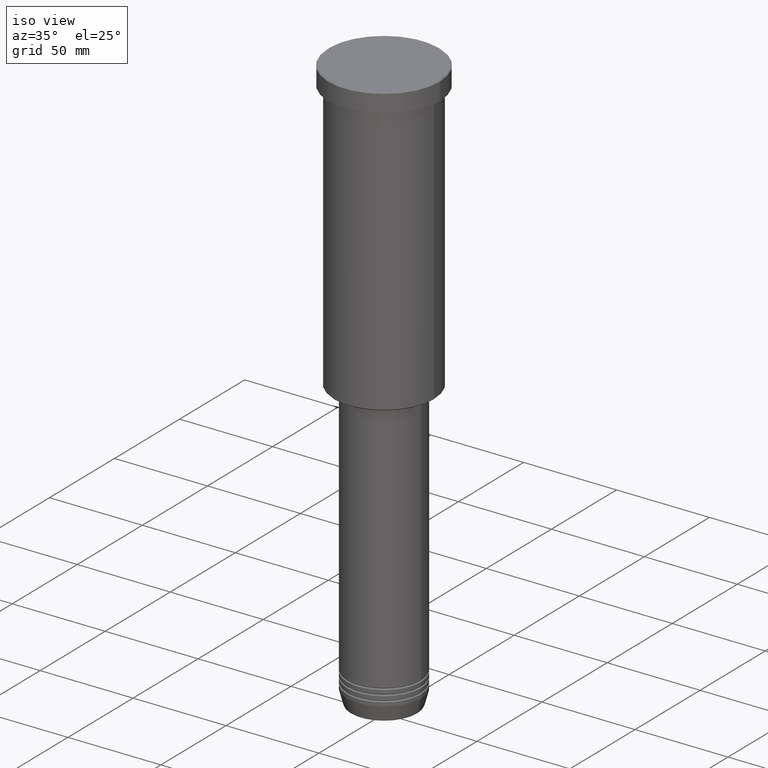
[diagram: clean part render]
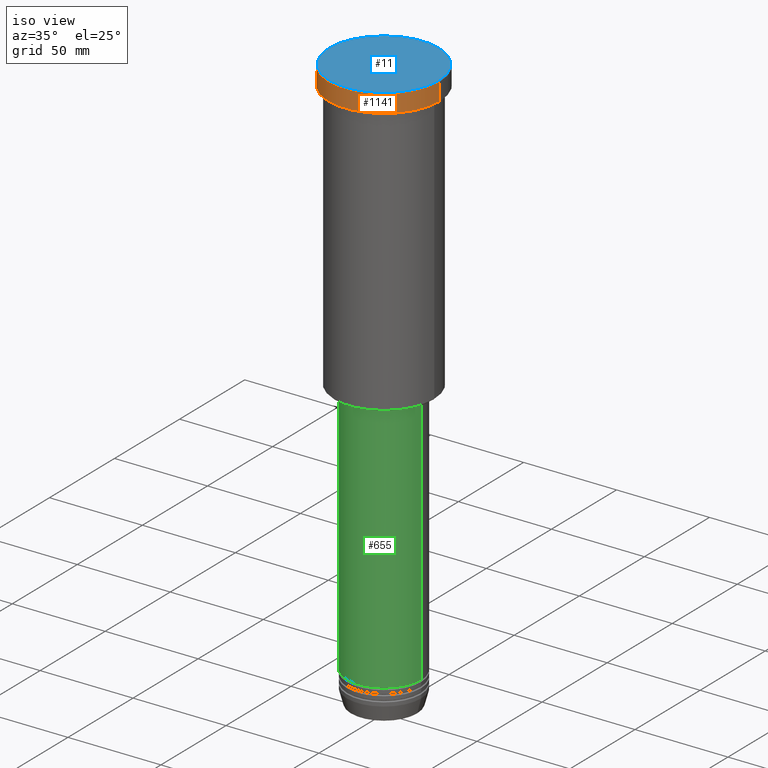
[diagram: same view with three faces highlighted in distinct colors, each labeled with its STEP entity id]
A machine part, iso view with three faces highlighted in distinct colors.
Their STEP definitions:

[orange] entity #1141 — the highlighted cylindrical surface (partial cylindrical patch) has radius 30 mm, axis along (-0, -0, 1).
#3 = EDGE_CURVE ( 'NONE', #993, #32, #1015, .T. ) ;
#4 = ORIENTED_EDGE ( 'NONE', *, *, #3, .T. ) ;
#32 = VERTEX_POINT ( 'NONE', #992 ) ;
#67 = DIRECTION ( 'NONE',  ( -0.000000000000000000, -0.000000000000000000, 1.000000000000000000 ) ) ;
#73 = ORIENTED_EDGE ( 'NONE', *, *, #373, .F. ) ;
#126 = CIRCLE ( 'NONE', #794, 30.00000000000000000 ) ;
#222 = CARTESIAN_POINT ( 'NONE',  ( -30.00000000000000000, 3.673940397442059178E-15, -9.999999999999992895 ) ) ;
#252 = CARTESIAN_POINT ( 'NONE',  ( 0.000000000000000000, 0.000000000000000000, -0.5000000000000073275 ) ) ;
#278 = EDGE_LOOP ( 'NONE', ( #73, #930, #4, #1073 ) ) ;
#287 = AXIS2_PLACEMENT_3D ( 'NONE', #652, #913, #568 ) ;
#346 = DIRECTION ( 'NONE',  ( 1.000000000000000000, 0.000000000000000000, 0.000000000000000000 ) ) ;
#373 = EDGE_CURVE ( 'NONE', #681, #1039, #966, .T. ) ;
#412 = EDGE_CURVE ( 'NONE', #32, #1039, #126, .T. ) ;
#417 = AXIS2_PLACEMENT_3D ( 'NONE', #740, #707, #1003 ) ;
#474 = EDGE_CURVE ( 'NONE', #681, #993, #692, .T. ) ;
#527 = VECTOR ( 'NONE', #916, 1000.000000000000000 ) ;
#568 = DIRECTION ( 'NONE',  ( 1.000000000000000000, 0.000000000000000000, 0.000000000000000000 ) ) ;
#628 = FACE_OUTER_BOUND ( 'NONE', #278, .T. ) ;
#652 = CARTESIAN_POINT ( 'NONE',  ( 0.000000000000000000, 0.000000000000000000, 0.000000000000000000 ) ) ;
#658 = CARTESIAN_POINT ( 'NONE',  ( -30.00000000000000000, 3.673940397442059178E-15, -0.5000000000000073275 ) ) ;
#681 = VERTEX_POINT ( 'NONE', #222 ) ;
#692 = CIRCLE ( 'NONE', #417, 30.00000000000000000 ) ;
#707 = DIRECTION ( 'NONE',  ( -0.000000000000000000, -0.000000000000000000, 1.000000000000000000 ) ) ;
#739 = VECTOR ( 'NONE', #67, 1000.000000000000000 ) ;
#740 = CARTESIAN_POINT ( 'NONE',  ( 0.000000000000000000, 0.000000000000000000, -9.999999999999992895 ) ) ;
#749 = CARTESIAN_POINT ( 'NONE',  ( 30.00000000000000000, 0.000000000000000000, 0.000000000000000000 ) ) ;
#794 = AXIS2_PLACEMENT_3D ( 'NONE', #252, #1065, #346 ) ;
#835 = CARTESIAN_POINT ( 'NONE',  ( 30.00000000000000000, 0.000000000000000000, -9.999999999999992895 ) ) ;
#882 = CARTESIAN_POINT ( 'NONE',  ( -30.00000000000000000, 3.673940397442059178E-15, 0.000000000000000000 ) ) ;
#913 = DIRECTION ( 'NONE',  ( -0.000000000000000000, -0.000000000000000000, 1.000000000000000000 ) ) ;
#916 = DIRECTION ( 'NONE',  ( -0.000000000000000000, -0.000000000000000000, 1.000000000000000000 ) ) ;
#930 = ORIENTED_EDGE ( 'NONE', *, *, #474, .T. ) ;
#966 = LINE ( 'NONE', #882, #739 ) ;
#992 = CARTESIAN_POINT ( 'NONE',  ( 30.00000000000000000, 0.000000000000000000, -0.5000000000000073275 ) ) ;
#993 = VERTEX_POINT ( 'NONE', #835 ) ;
#998 = CYLINDRICAL_SURFACE ( 'NONE', #287, 30.00000000000000000 ) ;
#1003 = DIRECTION ( 'NONE',  ( 1.000000000000000000, 0.000000000000000000, 0.000000000000000000 ) ) ;
#1015 = LINE ( 'NONE', #749, #527 ) ;
#1039 = VERTEX_POINT ( 'NONE', #658 ) ;
#1065 = DIRECTION ( 'NONE',  ( 0.000000000000000000, 0.000000000000000000, -1.000000000000000000 ) ) ;
#1073 = ORIENTED_EDGE ( 'NONE', *, *, #412, .T. ) ;
#1141 = ADVANCED_FACE ( 'NONE', ( #628 ), #998, .T. ) ;

[blue] entity #11 — the highlighted planar face has unit normal (0, -0, 1).
#11 = ADVANCED_FACE ( 'NONE', ( #176 ), #198, .T. ) ;
#100 = DIRECTION ( 'NONE',  ( 1.000000000000000000, 0.000000000000000000, 0.000000000000000000 ) ) ;
#162 = EDGE_CURVE ( 'NONE', #543, #1143, #545, .T. ) ;
#169 = AXIS2_PLACEMENT_3D ( 'NONE', #670, #955, #405 ) ;
#176 = FACE_OUTER_BOUND ( 'NONE', #647, .T. ) ;
#198 = PLANE ( 'NONE',  #416 ) ;
#311 = DIRECTION ( 'NONE',  ( -0.000000000000000000, -0.000000000000000000, 1.000000000000000000 ) ) ;
#405 = DIRECTION ( 'NONE',  ( 1.000000000000000000, 0.000000000000000000, 0.000000000000000000 ) ) ;
#416 = AXIS2_PLACEMENT_3D ( 'NONE', #825, #459, #100 ) ;
#459 = DIRECTION ( 'NONE',  ( 0.000000000000000000, -0.000000000000000000, 1.000000000000000000 ) ) ;
#543 = VERTEX_POINT ( 'NONE', #997 ) ;
#545 = CIRCLE ( 'NONE', #691, 29.50000000000000000 ) ;
#596 = EDGE_CURVE ( 'NONE', #1143, #543, #836, .T. ) ;
#623 = ORIENTED_EDGE ( 'NONE', *, *, #596, .T. ) ;
#647 = EDGE_LOOP ( 'NONE', ( #623, #1135 ) ) ;
#670 = CARTESIAN_POINT ( 'NONE',  ( 0.000000000000000000, 0.000000000000000000, 0.000000000000000000 ) ) ;
#691 = AXIS2_PLACEMENT_3D ( 'NONE', #1052, #311, #854 ) ;
#825 = CARTESIAN_POINT ( 'NONE',  ( 0.000000000000000000, 0.000000000000000000, 0.000000000000000000 ) ) ;
#836 = CIRCLE ( 'NONE', #169, 29.50000000000000000 ) ;
#854 = DIRECTION ( 'NONE',  ( 1.000000000000000000, 0.000000000000000000, 0.000000000000000000 ) ) ;
#926 = CARTESIAN_POINT ( 'NONE',  ( -29.50000000000000000, 0.000000000000000000, 0.000000000000000000 ) ) ;
#955 = DIRECTION ( 'NONE',  ( -0.000000000000000000, -0.000000000000000000, 1.000000000000000000 ) ) ;
#997 = CARTESIAN_POINT ( 'NONE',  ( 29.50000000000000000, 3.643324227463375391E-15, 0.000000000000000000 ) ) ;
#1052 = CARTESIAN_POINT ( 'NONE',  ( 0.000000000000000000, 0.000000000000000000, 0.000000000000000000 ) ) ;
#1135 = ORIENTED_EDGE ( 'NONE', *, *, #162, .T. ) ;
#1143 = VERTEX_POINT ( 'NONE', #926 ) ;

[green] entity #655 — the highlighted cylindrical surface (partial cylindrical patch) has radius 20 mm, axis along (-0, -0, 1).
#2 = ORIENTED_EDGE ( 'NONE', *, *, #1055, .T. ) ;
#25 = CARTESIAN_POINT ( 'NONE',  ( -20.00000000000000000, 2.449293598294706513E-15, 0.000000000000000000 ) ) ;
#29 = CYLINDRICAL_SURFACE ( 'NONE', #1150, 20.00000000000000000 ) ;
#55 = VERTEX_POINT ( 'NONE', #357 ) ;
#124 = DIRECTION ( 'NONE',  ( -0.000000000000000000, -0.000000000000000000, 1.000000000000000000 ) ) ;
#179 = EDGE_CURVE ( 'NONE', #467, #444, #1129, .T. ) ;
#185 = CARTESIAN_POINT ( 'NONE',  ( 20.00000000000000000, 0.000000000000000000, -156.9999999999999147 ) ) ;
#197 = CARTESIAN_POINT ( 'NONE',  ( 0.000000000000000000, 0.000000000000000000, -294.0000000000000000 ) ) ;
#223 = CARTESIAN_POINT ( 'NONE',  ( 0.000000000000000000, 0.000000000000000000, -156.9999999999999147 ) ) ;
#233 = DIRECTION ( 'NONE',  ( 1.000000000000000000, 0.000000000000000000, 0.000000000000000000 ) ) ;
#245 = ORIENTED_EDGE ( 'NONE', *, *, #179, .F. ) ;
#349 = CARTESIAN_POINT ( 'NONE',  ( -20.00000000000000000, 2.449293598294706513E-15, -156.9999999999999147 ) ) ;
#357 = CARTESIAN_POINT ( 'NONE',  ( 20.00000000000000000, 0.000000000000000000, -294.0000000000000000 ) ) ;
#382 = DIRECTION ( 'NONE',  ( -0.000000000000000000, -0.000000000000000000, 1.000000000000000000 ) ) ;
#389 = DIRECTION ( 'NONE',  ( -0.000000000000000000, -0.000000000000000000, 1.000000000000000000 ) ) ;
#420 = LINE ( 'NONE', #784, #663 ) ;
#444 = VERTEX_POINT ( 'NONE', #185 ) ;
#467 = VERTEX_POINT ( 'NONE', #349 ) ;
#494 = AXIS2_PLACEMENT_3D ( 'NONE', #223, #124, #233 ) ;
#496 = AXIS2_PLACEMENT_3D ( 'NONE', #197, #382, #1004 ) ;
#513 = CIRCLE ( 'NONE', #496, 20.00000000000000000 ) ;
#576 = DIRECTION ( 'NONE',  ( 1.000000000000000000, 0.000000000000000000, 0.000000000000000000 ) ) ;
#588 = VECTOR ( 'NONE', #389, 1000.000000000000000 ) ;
#597 = ORIENTED_EDGE ( 'NONE', *, *, #654, .F. ) ;
#654 = EDGE_CURVE ( 'NONE', #849, #467, #656, .T. ) ;
#655 = ADVANCED_FACE ( 'NONE', ( #673 ), #29, .T. ) ;
#656 = LINE ( 'NONE', #25, #588 ) ;
#663 = VECTOR ( 'NONE', #872, 1000.000000000000000 ) ;
#673 = FACE_OUTER_BOUND ( 'NONE', #684, .T. ) ;
#684 = EDGE_LOOP ( 'NONE', ( #597, #2, #949, #245 ) ) ;
#702 = EDGE_CURVE ( 'NONE', #55, #444, #420, .T. ) ;
#751 = DIRECTION ( 'NONE',  ( -0.000000000000000000, -0.000000000000000000, 1.000000000000000000 ) ) ;
#784 = CARTESIAN_POINT ( 'NONE',  ( 20.00000000000000000, 0.000000000000000000, 0.000000000000000000 ) ) ;
#826 = CARTESIAN_POINT ( 'NONE',  ( -20.00000000000000000, 2.449293598294706513E-15, -294.0000000000000000 ) ) ;
#849 = VERTEX_POINT ( 'NONE', #826 ) ;
#872 = DIRECTION ( 'NONE',  ( -0.000000000000000000, -0.000000000000000000, 1.000000000000000000 ) ) ;
#949 = ORIENTED_EDGE ( 'NONE', *, *, #702, .T. ) ;
#950 = CARTESIAN_POINT ( 'NONE',  ( 0.000000000000000000, 0.000000000000000000, 0.000000000000000000 ) ) ;
#1004 = DIRECTION ( 'NONE',  ( 1.000000000000000000, 0.000000000000000000, 0.000000000000000000 ) ) ;
#1055 = EDGE_CURVE ( 'NONE', #849, #55, #513, .T. ) ;
#1129 = CIRCLE ( 'NONE', #494, 20.00000000000000000 ) ;
#1150 = AXIS2_PLACEMENT_3D ( 'NONE', #950, #751, #576 ) ;